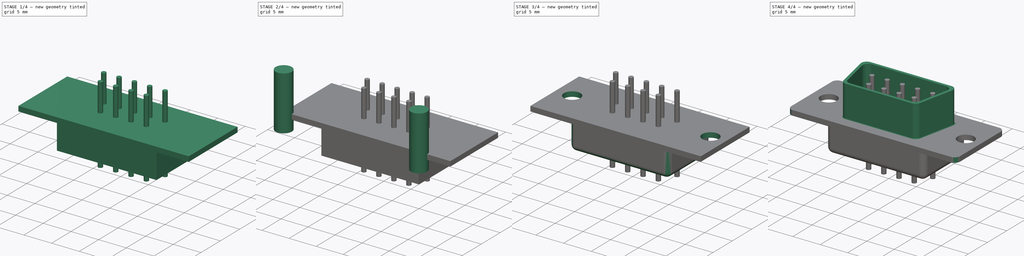
[diagram: build sequence overview — one tinted view per stage of 4, left to right]
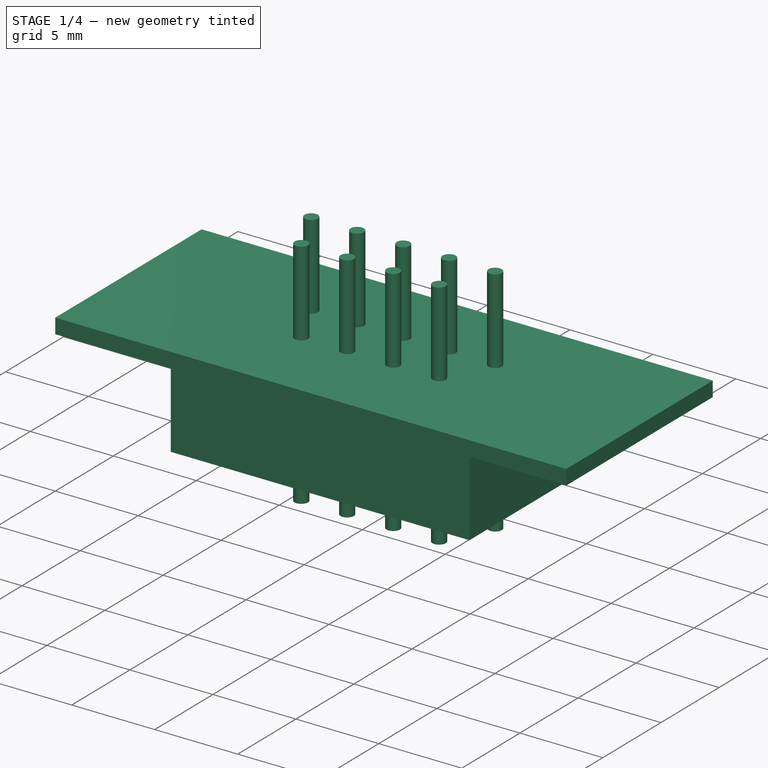
[diagram: stage 1 of 4 — iso view after this stage's code; geometry added in this stage tinted green]
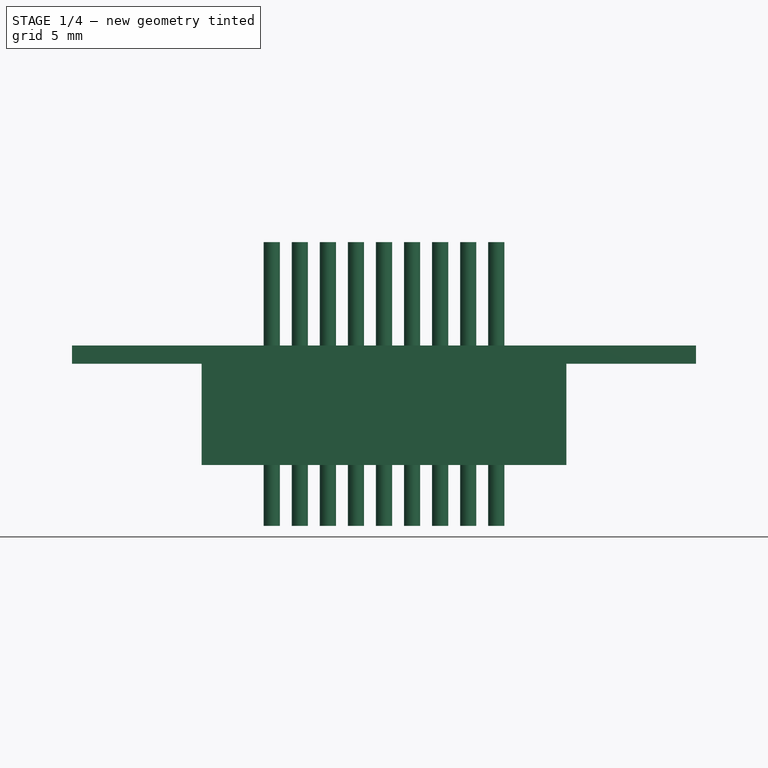
[diagram: stage 1 of 4 — front view after this stage's code; geometry added in this stage tinted green]
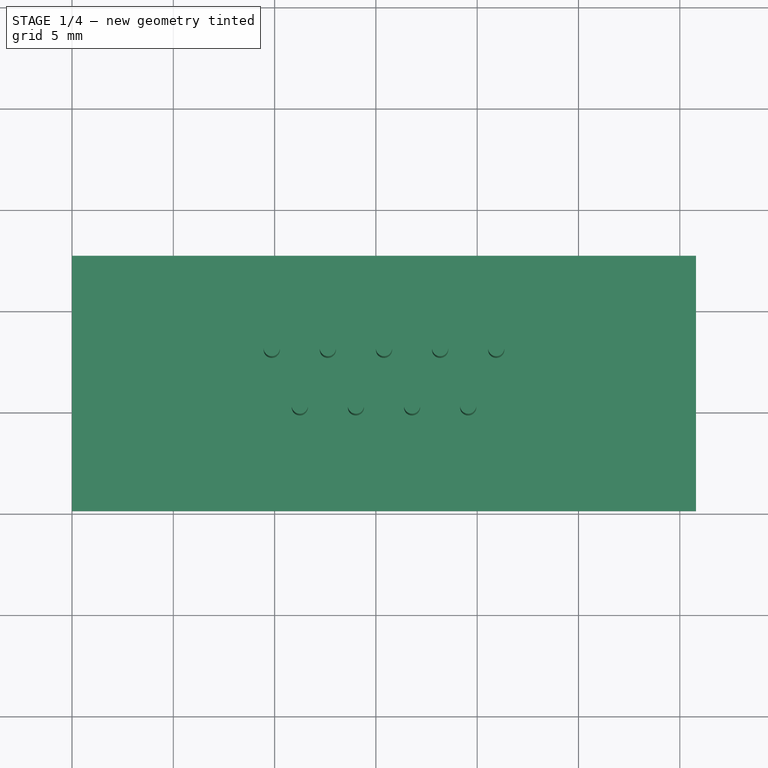
[diagram: stage 1 of 4 — top view after this stage's code; geometry added in this stage tinted green]
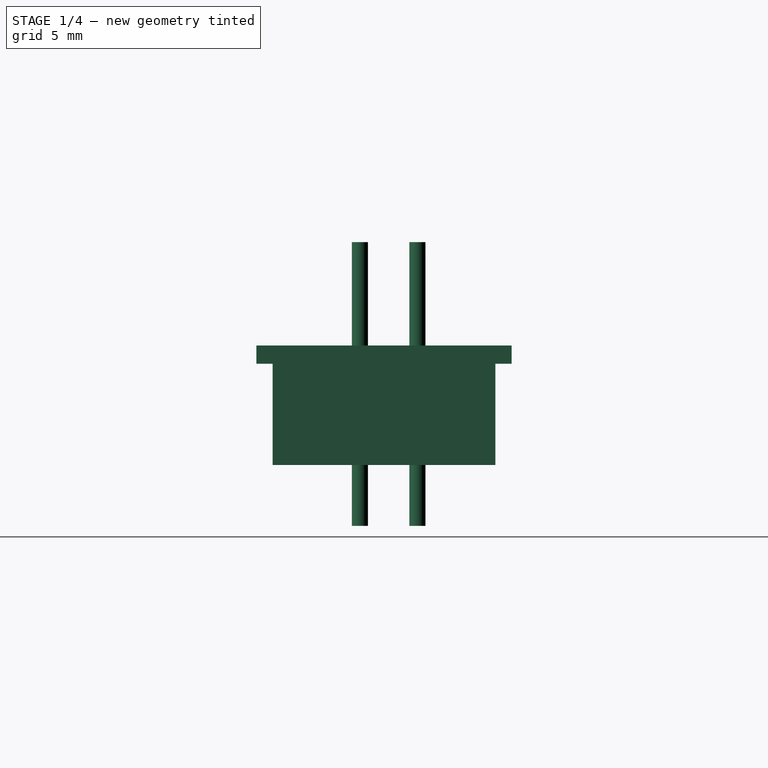
[diagram: stage 1 of 4 — right view after this stage's code; geometry added in this stage tinted green]
FCSTD DOCUMENT  (FreeCAD 0.16R6706 (Git))
Label: db9-straight-male
License: All rights reserved
LicenseURL: http://en.wikipedia.org/wiki/All_rights_reserved
objects: Part::Fillet×4, Part::Box×2, Part::Cylinder×2, Part::MultiFuse×2, Sketcher::SketchObject×2, PartDesign::Pad×2, Part::Cut×1, Part::Compound×1
note: 18 computed .brp shape members not serialized (recipe doc carries the construction recipe); baked Part::Feature solids carry a one-line shape summary decoded from their .brp

FEATURE [Part::Box] Box  label="Cube"
  Height = 0.9
  Length = 30.8
  Width = 12.6
FEATURE [Part::Box] Box001  label="Cube001"
  Height = 5.2
  Length = 18
  Placement = pos=(6.4,0.8,-5) rot=(0,0,1;0rad)
  Width = 11
FEATURE [Sketcher::SketchObject] Sketch001  label="pins"
  sketch-geometry (16):
    g0: LineSegment [constr] StartX=-2.29781 StartY=6.53139 StartZ=0 EndX=37.2562 EndY=6.53139 EndZ=0
    g1: LineSegment [constr] StartX=3.95099 StartY=7.95139 StartZ=0 EndX=26.3335 EndY=7.95139 EndZ=0
    g2: LineSegment [constr] StartX=5.23756 StartY=5.11139 StartZ=0 EndX=26.3335 EndY=5.11139 EndZ=0
    g3: Circle CenterX=9.86 CenterY=7.95139 CenterZ=0 NormalX=0 NormalY=0 NormalZ=1 Radius=0.4
    g4: Circle CenterX=12.63 CenterY=7.95139 CenterZ=0 NormalX=0 NormalY=0 NormalZ=1 Radius=0.4
    g5: Circle CenterX=15.4 CenterY=7.95139 CenterZ=0 NormalX=0 NormalY=0 NormalZ=1 Radius=0.4
    g6: Circle CenterX=18.17 CenterY=7.95139 CenterZ=0 NormalX=0 NormalY=0 NormalZ=1 Radius=0.4
    g7: Circle CenterX=20.94 CenterY=7.95139 CenterZ=0 NormalX=0 NormalY=0 NormalZ=1 Radius=0.4
    g8: Circle CenterX=11.245 CenterY=5.11139 CenterZ=0 NormalX=0 NormalY=0 NormalZ=1 Radius=0.4
    g9: Circle CenterX=14.015 CenterY=5.11139 CenterZ=0 NormalX=0 NormalY=0 NormalZ=1 Radius=0.4
    g10: Circle CenterX=16.785 CenterY=5.11139 CenterZ=0 NormalX=0 NormalY=0 NormalZ=1 Radius=0.4
    g11: Circle CenterX=19.555 CenterY=5.11139 CenterZ=0 NormalX=0 NormalY=0 NormalZ=1 Radius=0.4
    g12: LineSegment [constr] StartX=11.245 StartY=8.11144 StartZ=0 EndX=11.245 EndY=3.0548 EndZ=0
    g13: LineSegment [constr] StartX=22.1477 StartY=9.70489 StartZ=0 EndX=15.4 EndY=9.36393 EndZ=0
    g14: LineSegment [constr] StartX=8.65235 StartY=9.70489 StartZ=0 EndX=15.4 EndY=9.36393 EndZ=0
    g15: LineSegment [constr] StartX=15.4 StartY=10.6369 StartZ=0 EndX=15.4 EndY=2.42793 EndZ=0
  constraints (38):
    c: Horizontal(g0)
    c: Horizontal(g1)
    c: Horizontal(g2)
    c: Distance(g1,g2) = 2.84
    c: Symmetric(g1,g2,g0)
    c: Equal(g3,g4)
    c: Equal(g4,g5)
    c: Equal(g5,g6)
    c: Equal(g6,g7)
    c: Equal(g7,g11)
    c: Equal(g11,g10)
    c: Equal(g10,g9)
    c: Equal(g9,g8)
    c: Radius(g3) = 0.4
    c: PointOnObject(g3,g1)
    c: PointOnObject(g4,g1)
    c: PointOnObject(g5,g1)
    c: PointOnObject(g6,g1)
    c: PointOnObject(g7,g1)
    c: PointOnObject(g11,g2)
    c: PointOnObject(g10,g2)
    c: PointOnObject(g9,g2)
    c: PointOnObject(g8,g2)
    c: Distance(g3,g4) = 2.77
    c: Distance(g4,g5) = 2.77
    c: Distance(g5,g6) = 2.77
    c: Distance(g6,g7) = 2.77
    c: Distance(g8,g9) = 2.77
    c: Distance(g9,g10) = 2.77
    c: Distance(g10,g11) = 2.77
    c: Vertical(g12)
    c: Distance(g4,g12) = 1.385
    c: PointOnObject(g8,g12)
    c: Coincident(g14,g13)
    c: Equal(g13,g14)
    c: PointOnObject(g13,g15)
    c: Vertical(g15)
    c: PointOnObject(g5,g15)
FEATURE [PartDesign::Pad] Pad001
  Length = 14
  Length2 = 100
  Sketch = -> Sketch001
  Type = 0
FEATURE [Part::Compound] Compound
  Links = -> [Pad001]
  Placement = pos=(0,0,-8) rot=(0,0,1;0rad)
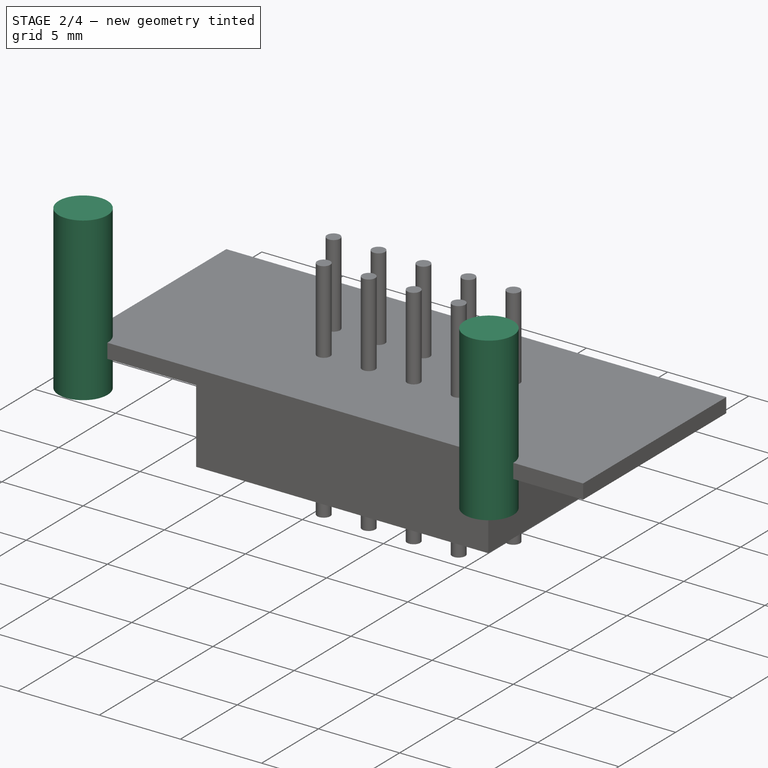
[diagram: stage 2 of 4 — iso view after this stage's code; geometry added in this stage tinted green]
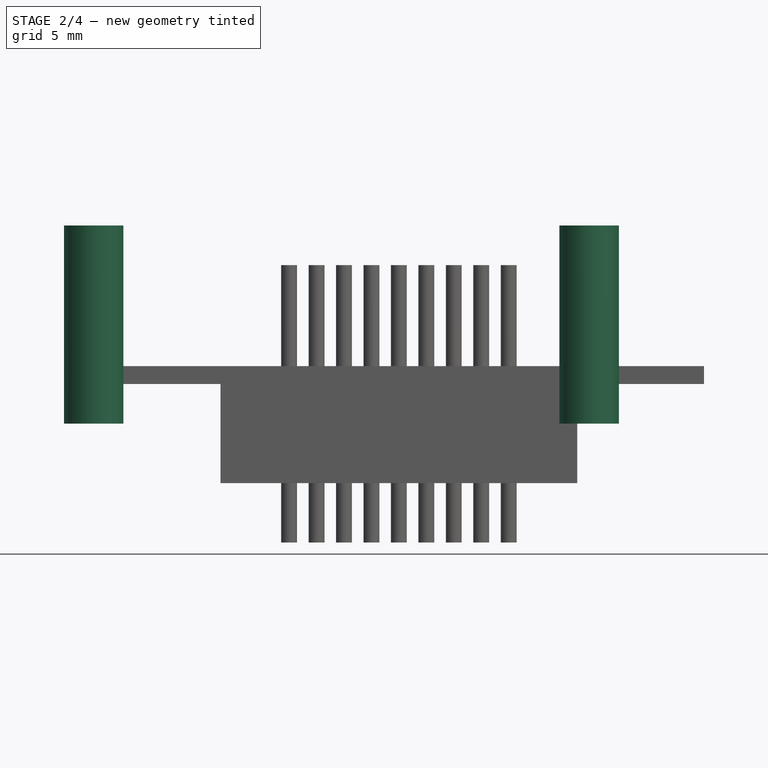
[diagram: stage 2 of 4 — front view after this stage's code; geometry added in this stage tinted green]
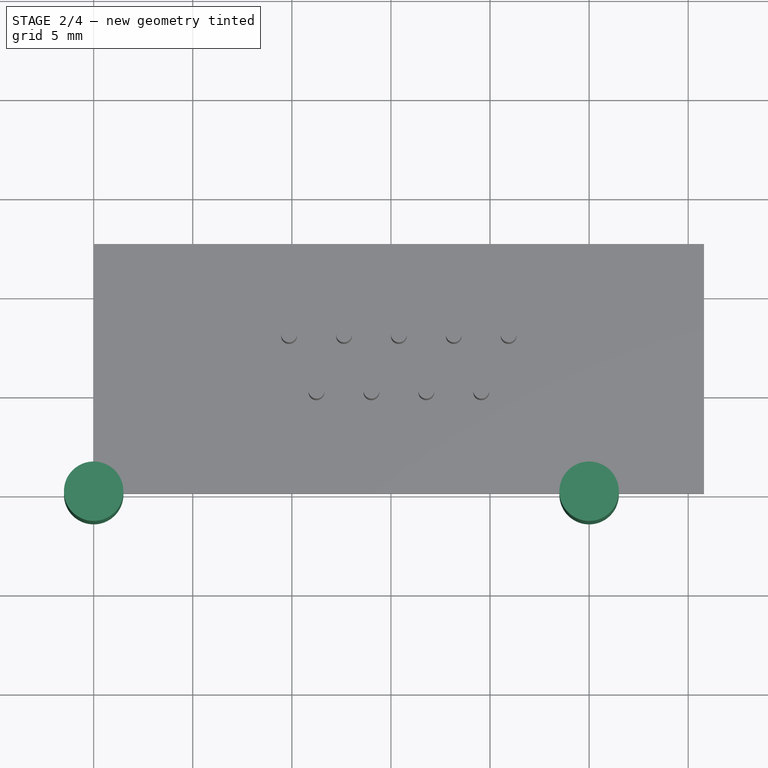
[diagram: stage 2 of 4 — top view after this stage's code; geometry added in this stage tinted green]
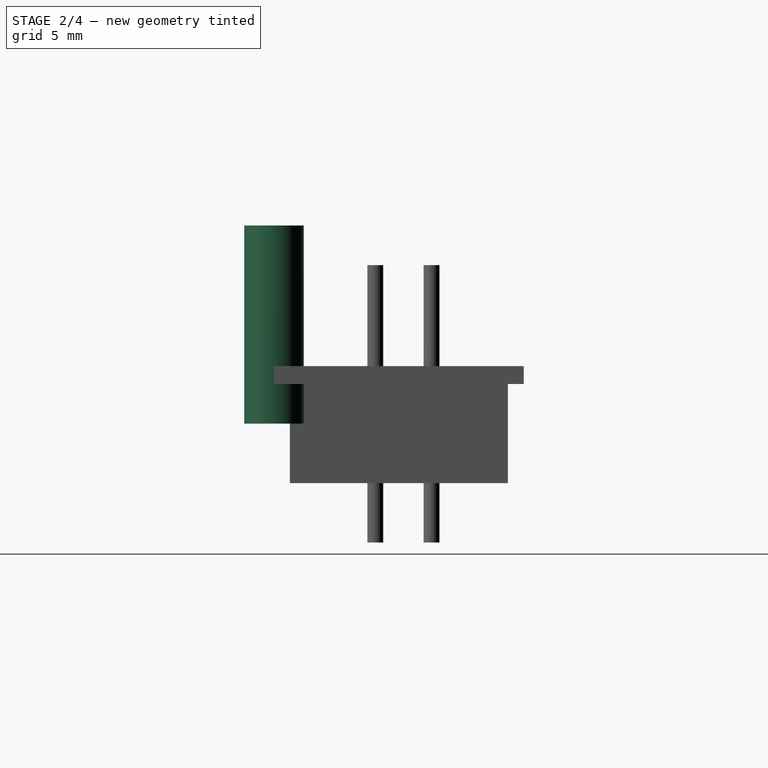
[diagram: stage 2 of 4 — right view after this stage's code; geometry added in this stage tinted green]
FEATURE [Part::Cylinder] Cylinder
  Angle = 360
  Height = 10
  Placement = pos=(0,0,-2) rot=(0,0,1;0rad)
  Radius = 1.5
FEATURE [Part::Cylinder] Cylinder001
  Angle = 360
  Height = 10
  Placement = pos=(25,0,-2) rot=(0,0,1;0rad)
  Radius = 1.5
FEATURE [Part::MultiFuse] Fusion001
  Shapes = -> [Box,Box001]
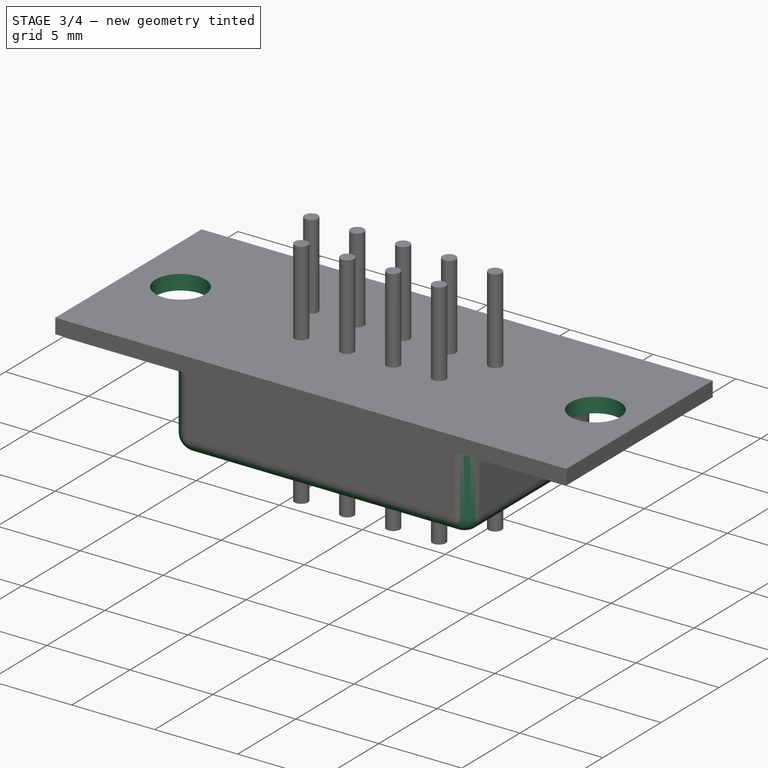
[diagram: stage 3 of 4 — iso view after this stage's code; geometry added in this stage tinted green]
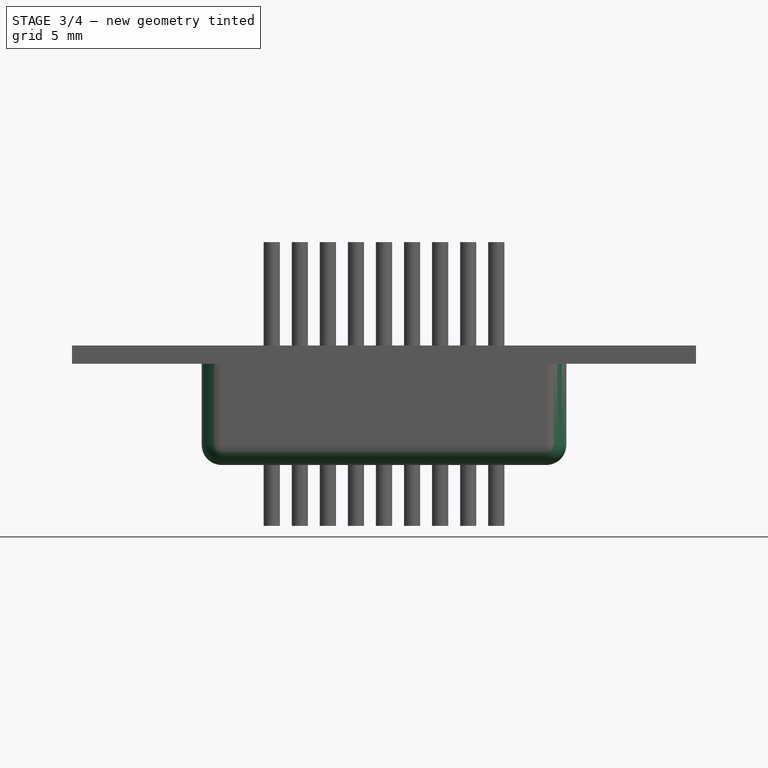
[diagram: stage 3 of 4 — front view after this stage's code; geometry added in this stage tinted green]
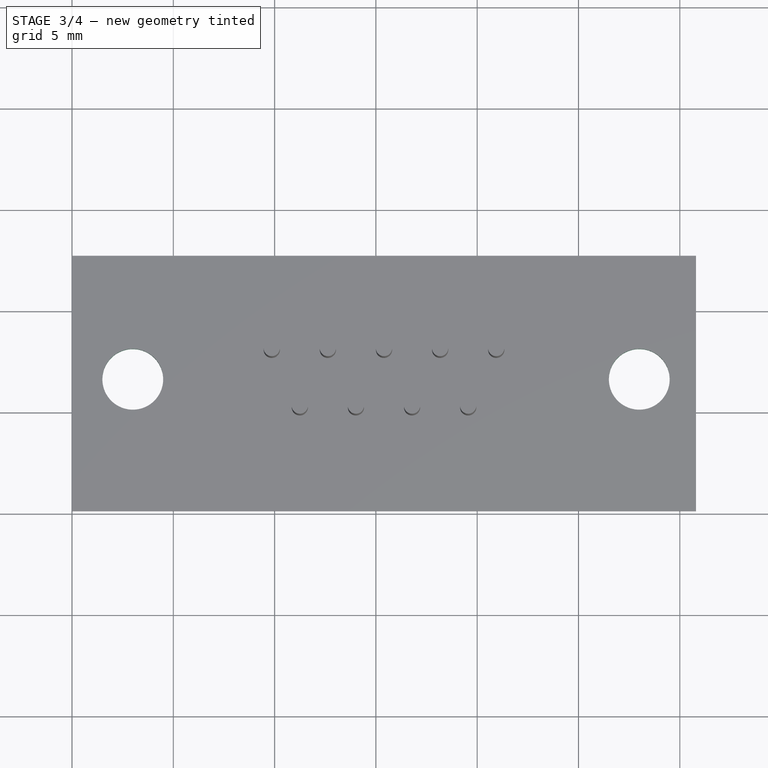
[diagram: stage 3 of 4 — top view after this stage's code; geometry added in this stage tinted green]
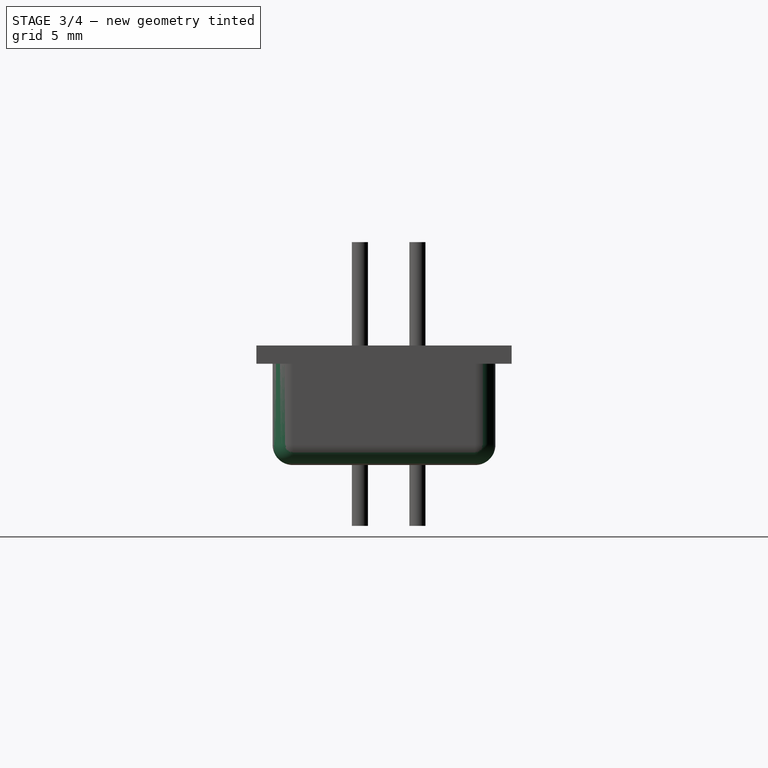
[diagram: stage 3 of 4 — right view after this stage's code; geometry added in this stage tinted green]
FEATURE [Part::MultiFuse] Fusion
  Placement = pos=(3,6.5,0) rot=(0,0,1;0rad)
  Shapes = -> [Cylinder001,Cylinder]
FEATURE [Part::Cut] Cut
  Base = -> Fusion001
  Tool = -> Fusion
FEATURE [Part::Fillet] Fillet
  Base = -> Cut
  Edges = 8 edges r=1: [Edge23,Edge24,Edge25,Edge26,Edge27,Edge28,Edge29,Edge30]
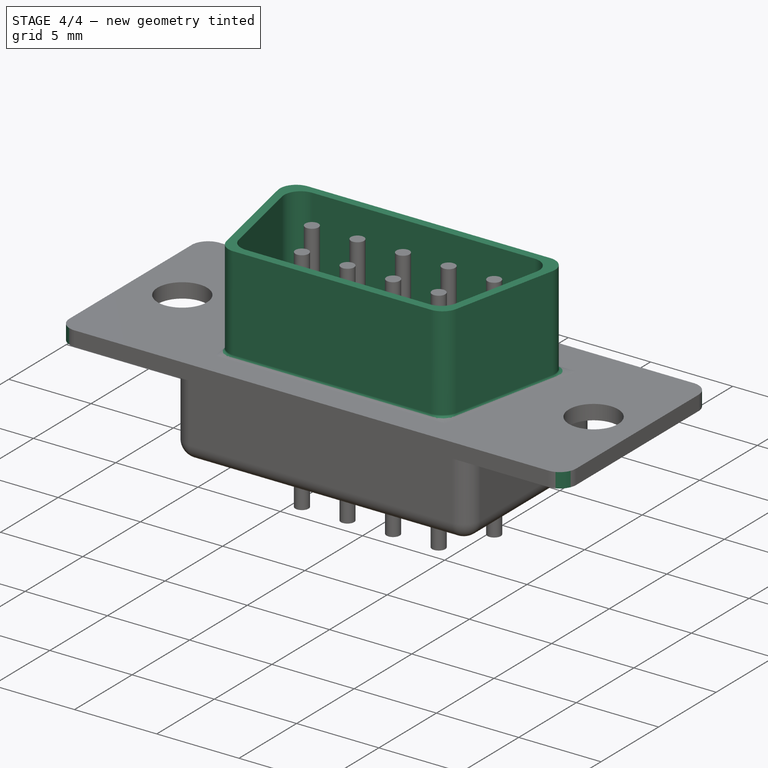
[diagram: stage 4 of 4 — iso view after this stage's code; geometry added in this stage tinted green]
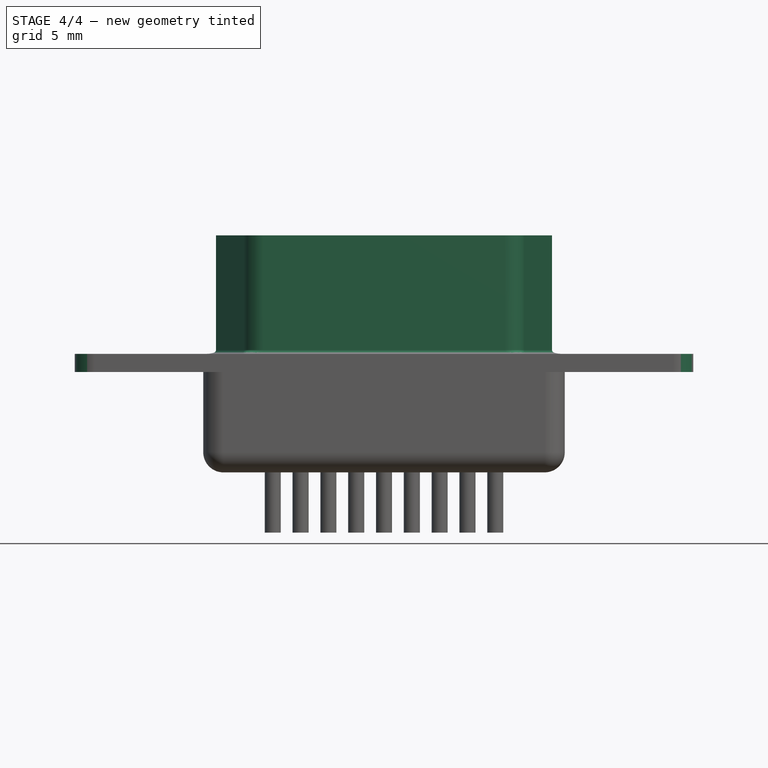
[diagram: stage 4 of 4 — front view after this stage's code; geometry added in this stage tinted green]
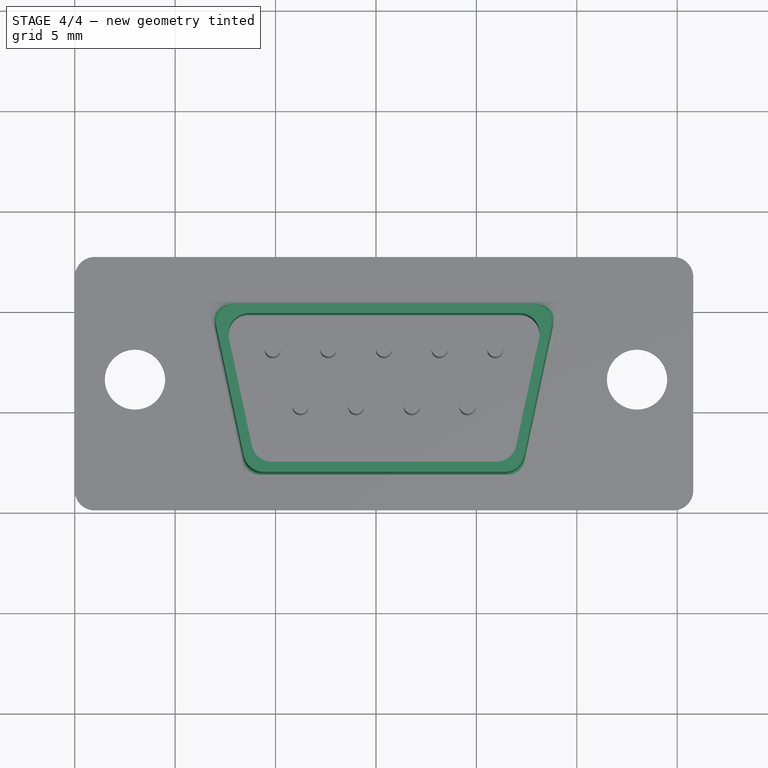
[diagram: stage 4 of 4 — top view after this stage's code; geometry added in this stage tinted green]
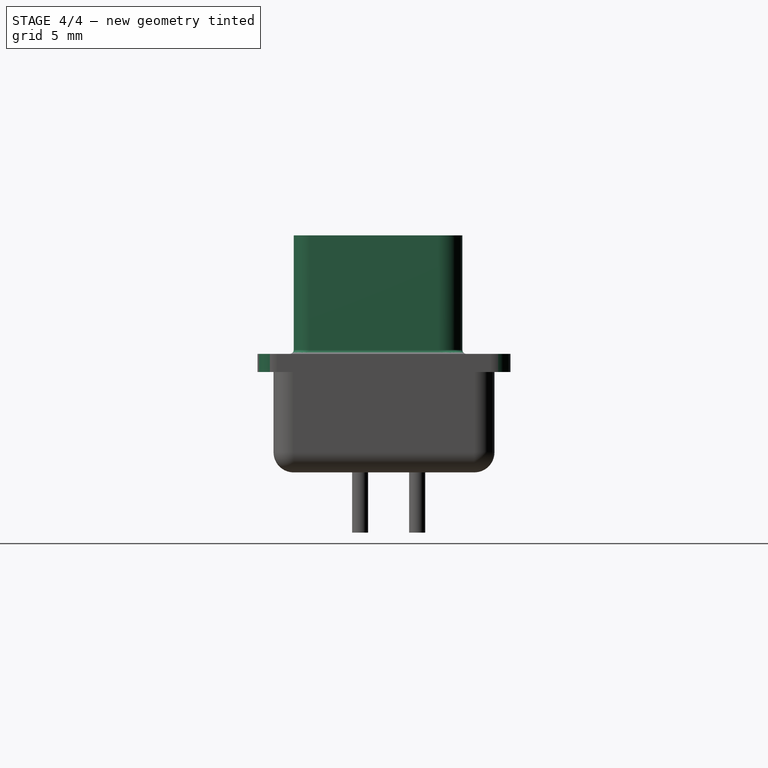
[diagram: stage 4 of 4 — right view after this stage's code; geometry added in this stage tinted green]
FEATURE [Part::Fillet] Fillet001
  Base = -> Fillet
  Edges = 4 edges r=1: [Edge31,Edge33,Edge34,Edge36]
FEATURE [Sketcher::SketchObject] Sketch
  ExternalGeometry = -> [Fillet001]
  Placement = pos=(0,0,0.9) rot=(0,0,1;0rad)
  Support = -> Fillet001 [Face20]
  sketch-geometry (10):
    g0: LineSegment StartX=6.8 StartY=10.2049 StartZ=0 EndX=24 EndY=10.2049 EndZ=0
    g1: LineSegment StartX=24 StartY=10.2049 StartZ=0 EndX=22.2145 EndY=1.80489 EndZ=0
    g2: LineSegment StartX=22.2145 StartY=1.80489 StartZ=0 EndX=8.58548 EndY=1.80489 EndZ=0
    g3: LineSegment StartX=8.58548 StartY=1.80489 StartZ=0 EndX=6.8 EndY=10.2049 EndZ=0
    g4: LineSegment [constr] StartX=24 StartY=10.2049 StartZ=0 EndX=30.8 EndY=10.2049 EndZ=0
    g5: LineSegment [constr] StartX=6.8 StartY=10.2049 StartZ=0 EndX=0 EndY=10.2049 EndZ=0
    g6: LineSegment StartX=7.41745 StartY=9.70489 StartZ=0 EndX=23.3826 EndY=9.70489 EndZ=0
    g7: LineSegment StartX=23.3826 StartY=9.70489 StartZ=0 EndX=21.8096 EndY=2.30489 EndZ=0
    g8: LineSegment StartX=21.8096 StartY=2.30489 StartZ=0 EndX=8.99037 EndY=2.30489 EndZ=0
    g9: LineSegment StartX=8.99037 StartY=2.30489 StartZ=0 EndX=7.41745 EndY=9.70489 EndZ=0
  constraints (29):
    c: Coincident(g0,g1)
    c: Coincident(g1,g2)
    c: Coincident(g2,g3)
    c: Coincident(g3,g0)
    c: Horizontal(g0)
    c: Horizontal(g2)
    c: DistanceX(g0,g0) = 17.2
    c: Distance(g1,g0) = 8.4
    c: Angle(g3,g0) = 1.36136
    c: Angle(g0,g1) = 1.36136
    c: Perpendicular(g-4,g4)
    c: Coincident(g4,g0)
    c: Perpendicular(g-3,g5)
    c: Coincident(g5,g0)
    c: PointOnObject(g4,g-4)
    c: PointOnObject(g5,g-3)
    c: Equal(g5,g4)
    c: Coincident(g6,g7)
    c: Coincident(g7,g8)
    c: Coincident(g8,g9)
    c: Coincident(g6,g9)
    c: Parallel(g9,g3)
    c: Parallel(g6,g0)
    c: Parallel(g8,g2)
    c: Parallel(g7,g1)
    c: Distance(g8,g2) = 0.5
    c: Distance(g6,g0) = 0.5
    c: Distance(g6,g1) = 0.5
    c: Distance(g6,g3) = 0.5
FEATURE [PartDesign::Pad] Pad
  Length = 5.9
  Length2 = 100
  Sketch = -> Sketch
  Type = 0
FEATURE [Part::Fillet] Fillet002
  Base = -> Pad
  Edges = 4 edges r=0.2: [Edge10,Edge12,Edge14,Edge16]
FEATURE [Part::Fillet] Fillet003
  Base = -> Fillet002
  Edges = 8 edges r=1: [Edge1,Edge4,Edge5,Edge18,Edge35,Edge37,Edge39,Edge41]
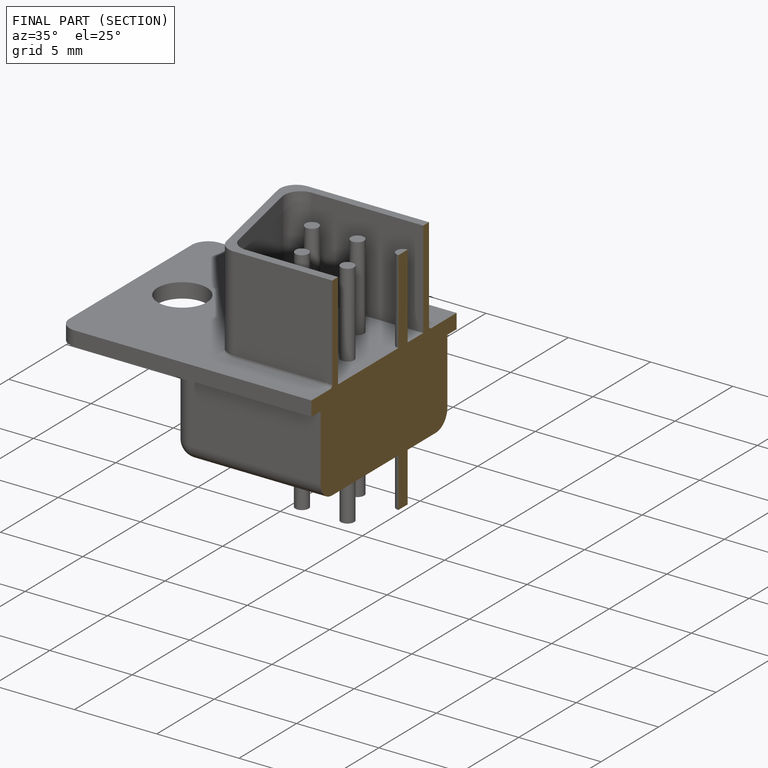
[diagram: finished part — half-section view (interior)]
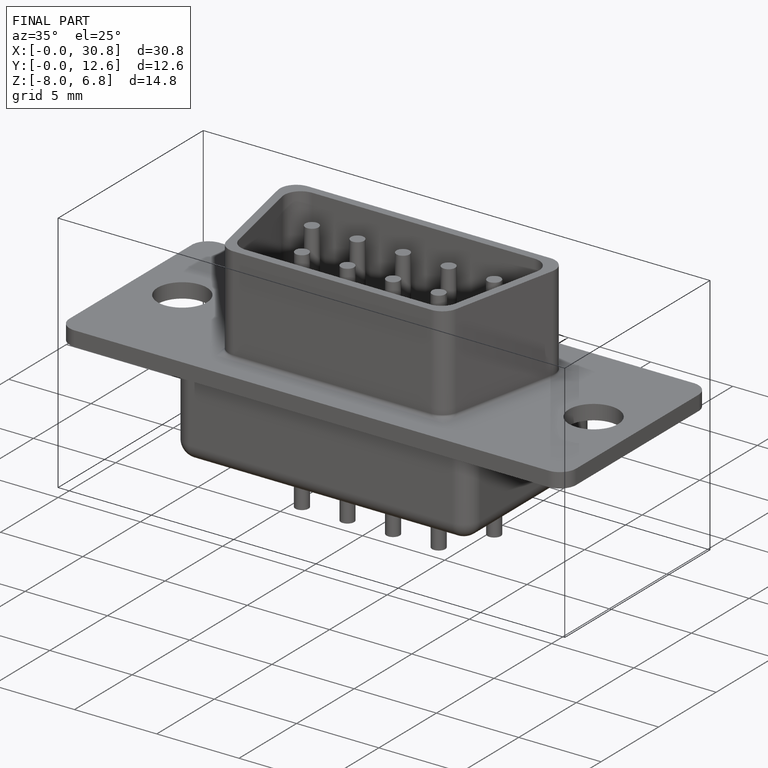
[diagram: finished part — iso view with bounding-box wireframe]
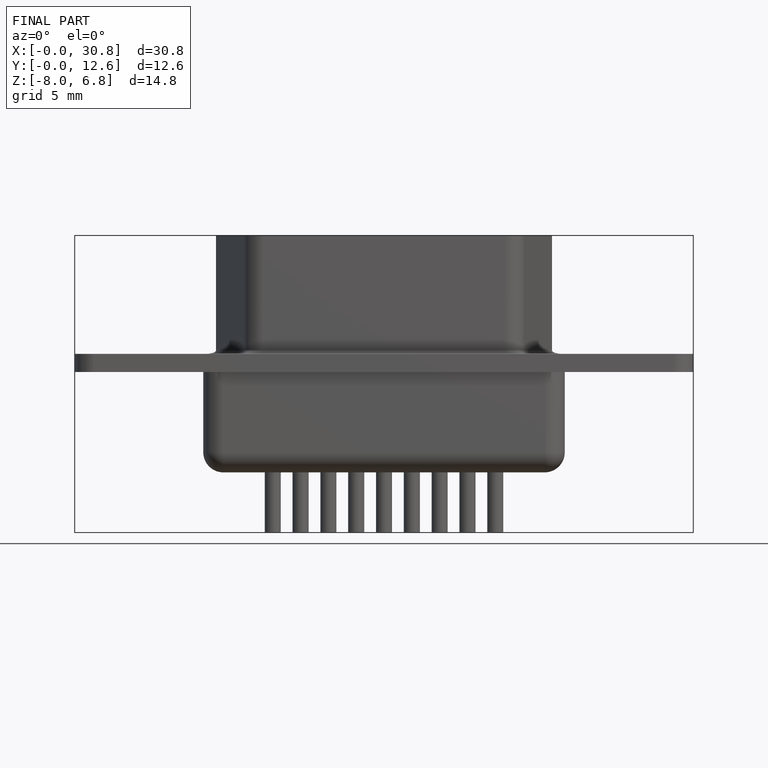
[diagram: finished part — front view with bounding-box wireframe]
